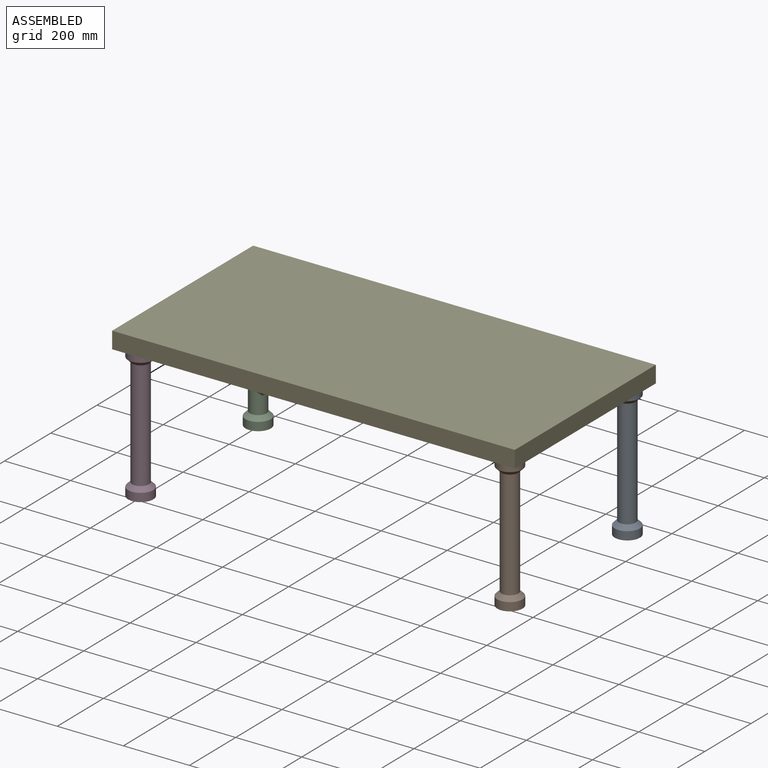
[diagram: assembled view]
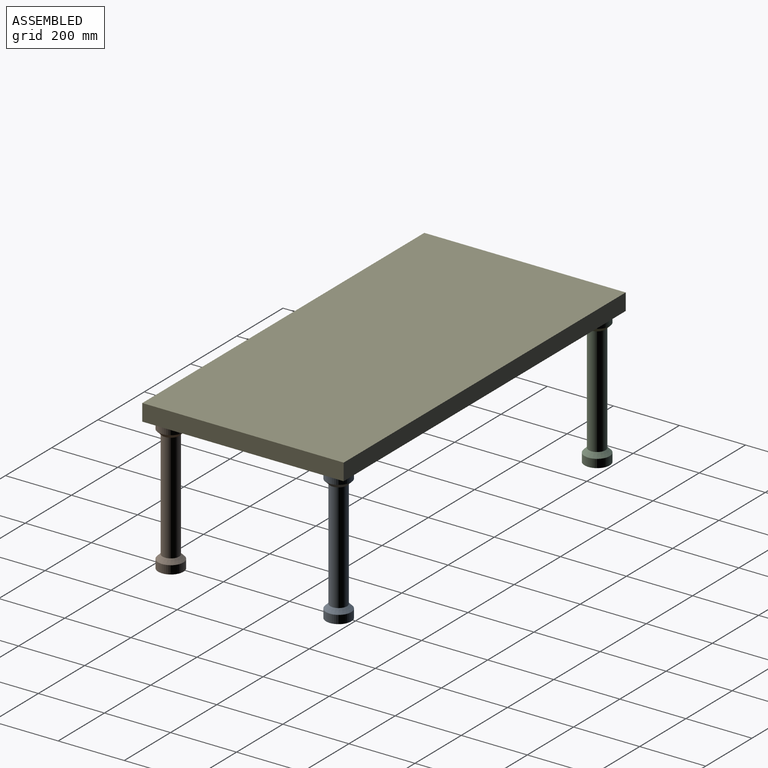
[diagram: assembled view, second angle]
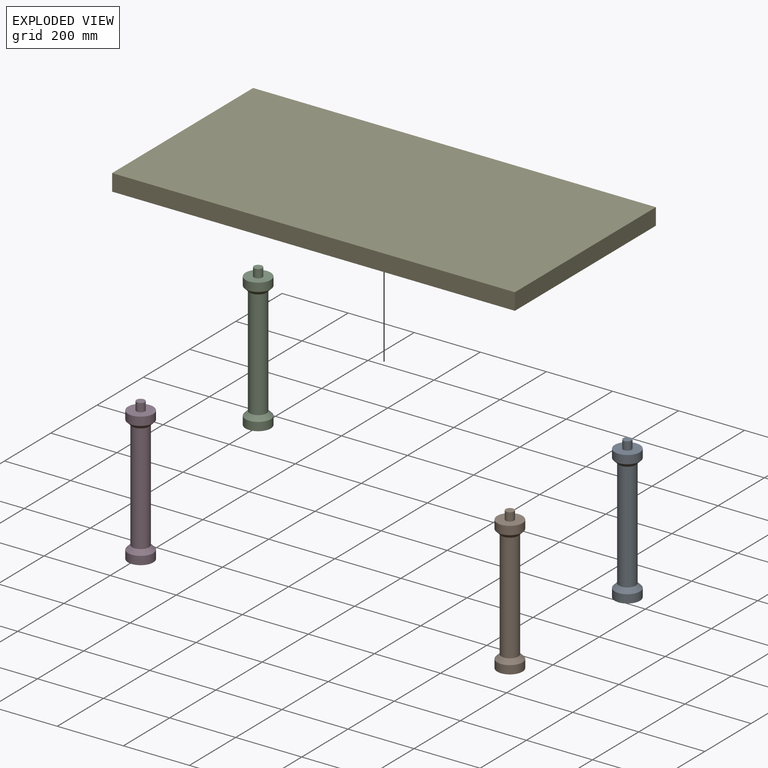
[diagram: exploded view]
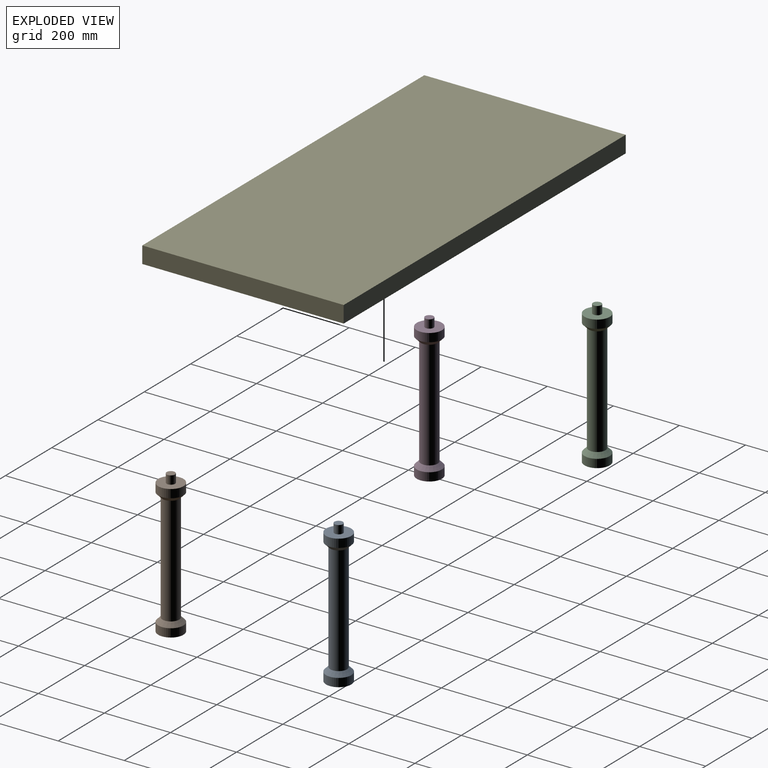
[diagram: exploded view, second angle]
ASSEMBLY  parts=5 mates=4
PART A: 9 faces, bbox 76.2x76.2x431.8 mm
  f0: plane 76.2x76.2mm, normal (0,0,1), area 4053.7mm2, adj f1,f8
  f1: cylinder r=38.1mm len=76.2mm, axis (0,0,1), area 6080.5mm2, adj f0,f2
  f2: cone r=25.4mm half-angle=45deg, axis (0,0,1), area 3583mm2, adj f1,f3
  f3: cylinder r=25.4mm len=330.2mm, axis (0,0,1), area 52697.6mm2, adj f2,f4
  f4: cone r=38.1mm half-angle=45deg, axis (0,0,-1), area 3583mm2, adj f3,f5
  f5: cylinder r=38.1mm len=76.2mm, axis (0,0,1), area 6080.5mm2, adj f4,f6
  f6: plane 76.2x76.2mm, normal (0,0,-1), area 4560.4mm2, adj f5
  f7: plane 25.4x25.4mm, normal (0,0,1), area 506.7mm2, adj f8
  f8: cylinder r=12.7mm len=25.4mm, axis (0,0,1), area 2026.8mm2, adj f0,f7
PART B: same geometry as A
PART C: same geometry as A
PART D: same geometry as A
PART E: 14 faces, bbox 1219.2x609.6x50.8 mm
  f0: plane 609.6x50.8mm, normal (1,0,0), area 30967.7mm2, adj f1,f3,f4,f5
  f1: plane 1219.2x50.8mm, normal (0,1,0), area 61935.4mm2, adj f0,f2,f4,f5
  f2: plane 609.6x50.8mm, normal (-1,0,0), area 30967.7mm2, adj f1,f3,f4,f5
  f3: plane 1219.2x50.8mm, normal (0,-1,0), area 61935.4mm2, adj f0,f2,f4,f5
  f4: plane 1219.2x609.6mm, normal (0,0,-1), area 741197.5mm2, adj f0,f1,f2,f3,f6,f8,f10,f12
  f5: plane 1219.2x609.6mm, normal (0,0,1), area 743224.3mm2, adj f0,f1,f2,f3
  f6: cylinder r=12.7mm len=25.4mm, axis (0,0,-1), area 2026.8mm2, adj f4,f7
  f7: plane 25.4x25.4mm, normal (0,0,-1), area 506.7mm2, adj f6
  f8: cylinder r=12.7mm len=25.4mm, axis (0,0,-1), area 2026.8mm2, adj f4,f9
  f9: plane 25.4x25.4mm, normal (0,0,-1), area 506.7mm2, adj f8
  f10: cylinder r=12.7mm len=25.4mm, axis (0,0,-1), area 2026.8mm2, adj f4,f11
  f11: plane 25.4x25.4mm, normal (0,0,-1), area 506.7mm2, adj f10
  f12: cylinder r=12.7mm len=25.4mm, axis (0,0,-1), area 2026.8mm2, adj f4,f13
  f13: plane 25.4x25.4mm, normal (0,0,-1), area 506.7mm2, adj f12
PLACE A t=(1308.55,447.82,170.24)mm
PLACE B t=(1308.55,-60.18,170.24)mm
PLACE C t=(190.95,447.82,170.24)mm
PLACE D t=(190.95,-60.18,170.24)mm
PLACE E t=(190.95,-60.18,170.24)mm fixed
MATE fastened B.f1 <-> E.f12  axis (0,0,1) through (749.75,-314.18,170.24)mm
MATE fastened A.f1 <-> E.f10  axis (0,0,1) through (749.75,193.82,170.24)mm
MATE fastened D.f1 <-> E.f6  axis (0,0,1) through (-367.85,-314.18,170.24)mm
MATE fastened C.f1 <-> E.f8  axis (0,0,1) through (-367.85,193.82,170.24)mm
